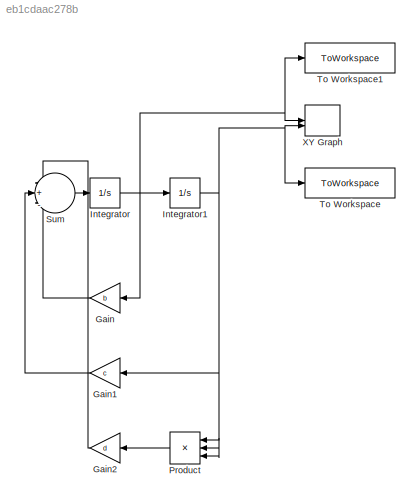
MODEL slx_eb1cdaac278b
KIND model
CONFIG AbsTol = auto
CONFIG EnableMultiTasking = off
CONFIG FixedStep = auto
CONFIG MaxStep = auto
CONFIG MinStep = auto
CONFIG RelTol = 1e-3
CONFIG SampleTimeConstraint = Unconstrained
CONFIG SolverName = VariableStepAuto
CONFIG StartTime = 0.0
CONFIG StopTime = 10.0
BLOCK [Gain] Gain
  Gain = b
  NameLocation = top
BLOCK [Gain] Gain1
  Gain = c
  NameLocation = top
BLOCK [Gain] Gain2
  Gain = d
  NameLocation = top
BLOCK [Integrator] Integrator
  InitialCondition = x0(1)
BLOCK [Integrator] Integrator1
  InitialCondition = x0(2)
BLOCK [Product] Product
  Inputs = 3
  NameLocation = top
BLOCK [Sum] Sum
  Inputs = |+|-|-|
BLOCK [ToWorkspace] To Workspace
  FixptAsFi = on
  MaxDataPoints = inf
  SampleTime = -1
  VariableName = x1
BLOCK [ToWorkspace] To Workspace1
  FixptAsFi = on
  MaxDataPoints = inf
  SampleTime = -1
  VariableName = x2
BLOCK [Record] XY Graph
  CompatibilityTag = XY
  FileSettingsInternal = {"entries":[{"content":{"excelSettings":{"content":{},"type":"Streamout.ExcelSettings"}},"type":"Streamout.FileSettingStorage","uuid":"9ac6296e-adfd-4590-ba14-e6331021d3ed"}],"packageUris":["http://schema.mathworks.com/mf0/streamout_blocks/R2020a"],"version":"1.0"}
  Layout = [1 1]
  SignalsInternal = {"entries":[{"content":{"signals":[{"content":{"blockPath":["simLab12/XY Graph"],"channel":[],"dimensions":[1],"domain":"simLab12/XY Graph","lineColor":"#a2142f","plots":[1],"port":1,"sid":[""],"signalID":16277,"signalName":"Integrator"},"type":"RecordBlkView.Signal","uuid":"c9a08269-bfcb-4f17-8004-59100670262b"},{"content":{"blockPath":["simLab12/XY Graph"],"channel":[],"dimensions":[1],"domain":...<+372ch>
  VisualizationBindings = {"xyplotplugin":{"info":[{"series":[{"bindingParametersList":[{"parameter":"X-Axis","signalID":16277,"signalName":"Integrator"},{"parameter":"Y-Axis","signalID":16281,"signalName":"Integrator1"}],"seriesID":51877}],"subplotID":1}]}}
LINE Gain1:1 -> Sum:2
LINE Gain2:1 -> Sum:1
LINE Gain:1 -> Sum:3
NET Integrator1:1 -> Gain1:1, Product:1, Product:2, Product:3, To Workspace:1, XY Graph:2
NET Integrator:1 -> Gain:1, Integrator1:1, To Workspace1:1, XY Graph:1
LINE Product:1 -> Gain2:1
LINE Sum:1 -> Integrator:1
note: NET lines group one-source signal fan-out (src -> all destinations, sorted); 1:1 wires keep LINE
